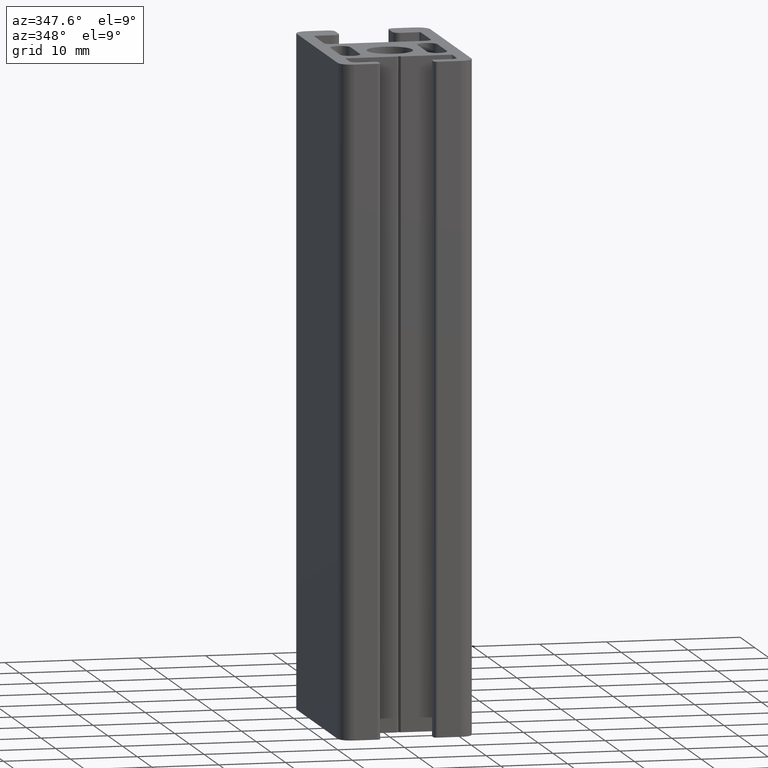
[diagram: clean part render]
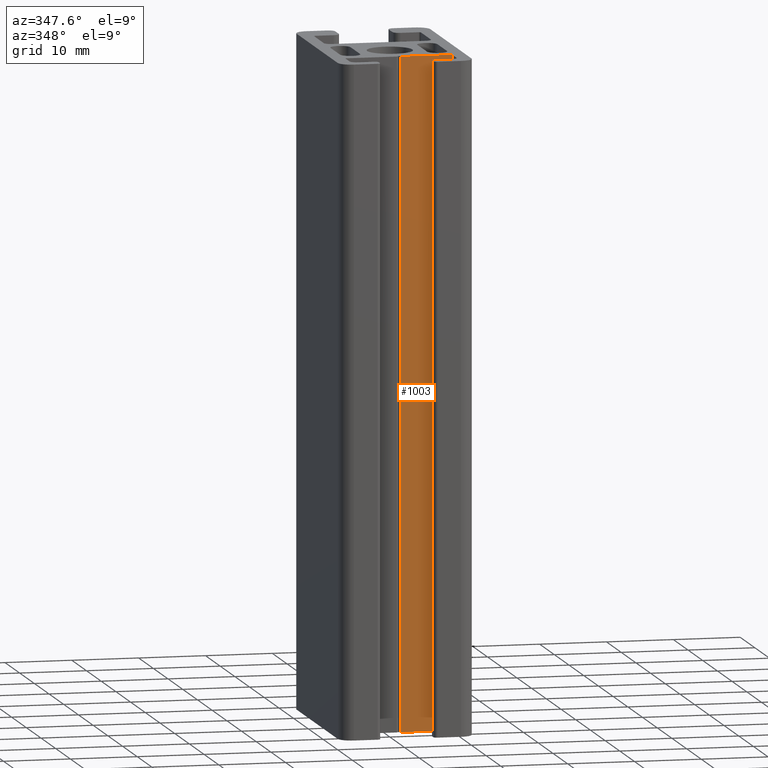
[diagram: same view with one face highlighted and labeled with its STEP entity id]
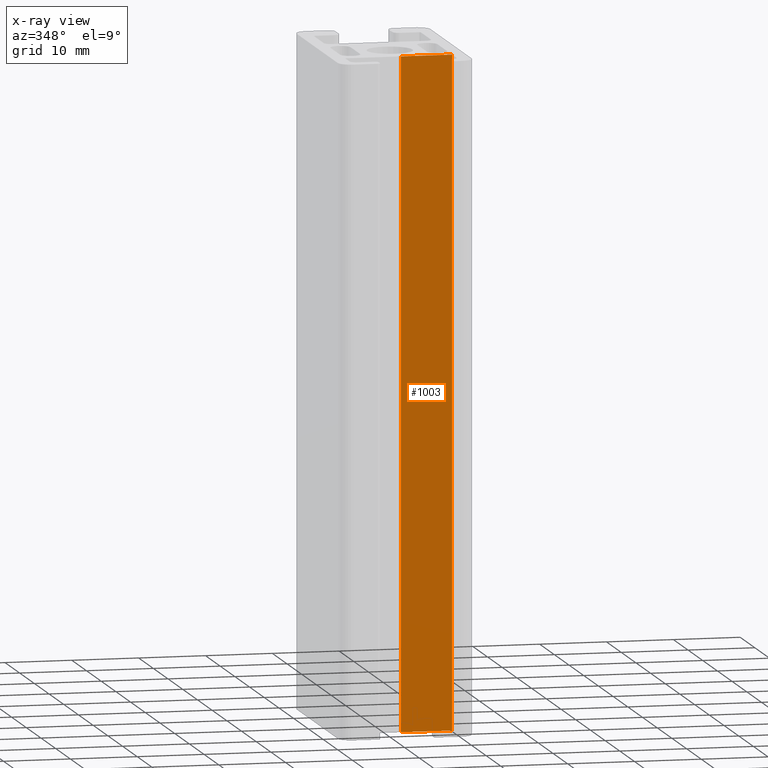
[diagram: x-ray of the same camera — body ghosted, the highlighted face saturated]
A machine part, auxiliary view. The second image highlights one B-rep face of the part: STEP entity #1003.
The next image is the same camera in x-ray: the body ghosted, the highlighted face saturated — about 0% of this face is hidden behind the body in this view.
In plain terms, the highlighted planar face has unit normal (0, 1, 0).
Its self-contained STEP definition (entity closure, byte-faithful):
#32=PLANE('',#1075);
#70=FACE_OUTER_BOUND('',#123,.T.);
#123=EDGE_LOOP('',(#737,#738,#739,#740));
#201=LINE('',#1556,#304);
#202=LINE('',#1559,#305);
#203=LINE('',#1561,#306);
#204=LINE('',#1562,#307);
#304=VECTOR('',#1251,100.);
#305=VECTOR('',#1254,7.7);
#306=VECTOR('',#1255,7.7);
#307=VECTOR('',#1256,100.);
#454=VERTEX_POINT('',#1552);
#455=VERTEX_POINT('',#1554);
#456=VERTEX_POINT('',#1558);
#457=VERTEX_POINT('',#1560);
#571=EDGE_CURVE('',#455,#454,#201,.T.);
#572=EDGE_CURVE('',#454,#456,#202,.T.);
#573=EDGE_CURVE('',#457,#455,#203,.T.);
#574=EDGE_CURVE('',#457,#456,#204,.T.);
#737=ORIENTED_EDGE('',*,*,#572,.F.);
#738=ORIENTED_EDGE('',*,*,#571,.F.);
#739=ORIENTED_EDGE('',*,*,#573,.F.);
#740=ORIENTED_EDGE('',*,*,#574,.T.);
#1003=ADVANCED_FACE('',(#70),#32,.F.);
#1075=AXIS2_PLACEMENT_3D('',#1557,#1252,#1253);
#1251=DIRECTION('',(0.,0.,1.));
#1252=DIRECTION('center_axis',(2.88369616785755E-16,1.,0.));
#1253=DIRECTION('ref_axis',(-1.,2.66453525910038E-16,0.));
#1254=DIRECTION('',(1.,-2.88369616785755E-16,0.));
#1255=DIRECTION('',(-1.,2.88369616785755E-16,0.));
#1256=DIRECTION('',(0.,0.,1.));
#1552=CARTESIAN_POINT('',(0.299999999999998,-6.,100.));
#1554=CARTESIAN_POINT('',(0.299999999999998,-6.,0.));
#1556=CARTESIAN_POINT('',(0.299999999999998,-6.,0.));
#1557=CARTESIAN_POINT('Origin',(8.,-6.,0.));
#1558=CARTESIAN_POINT('',(8.,-6.,100.));
#1559=CARTESIAN_POINT('',(4.,-6.,100.));
#1560=CARTESIAN_POINT('',(8.,-6.,0.));
#1561=CARTESIAN_POINT('',(4.,-6.,0.));
#1562=CARTESIAN_POINT('',(8.,-6.,0.));